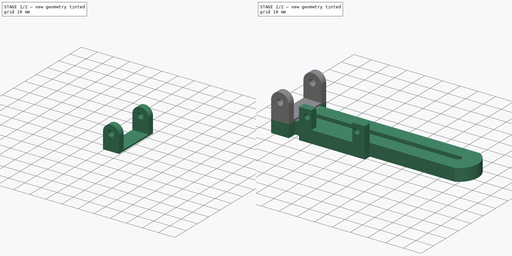
[diagram: build sequence overview — one tinted view per stage of 2, left to right]
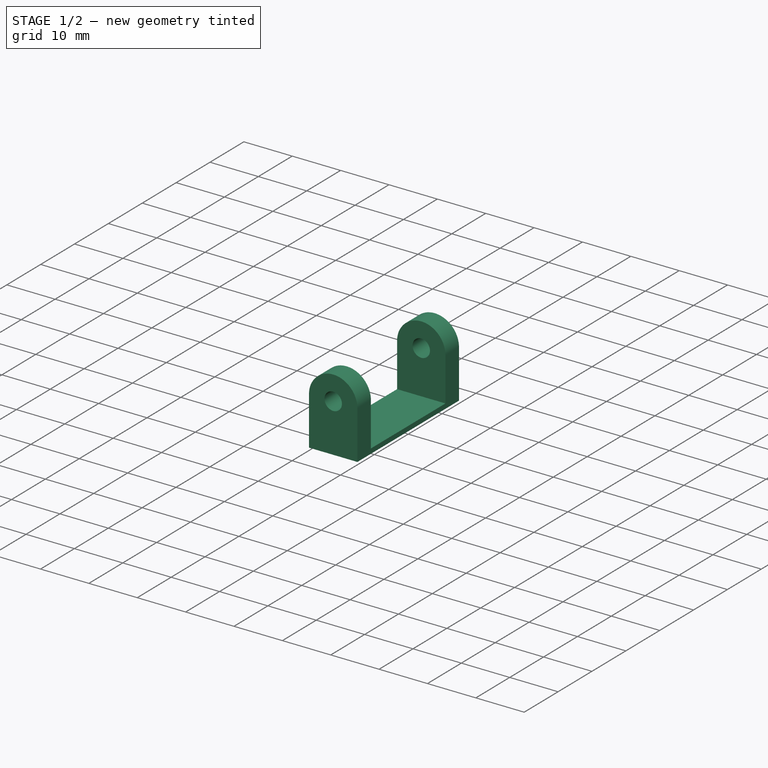
[diagram: stage 1 of 2 — iso view after this stage's code; geometry added in this stage tinted green]
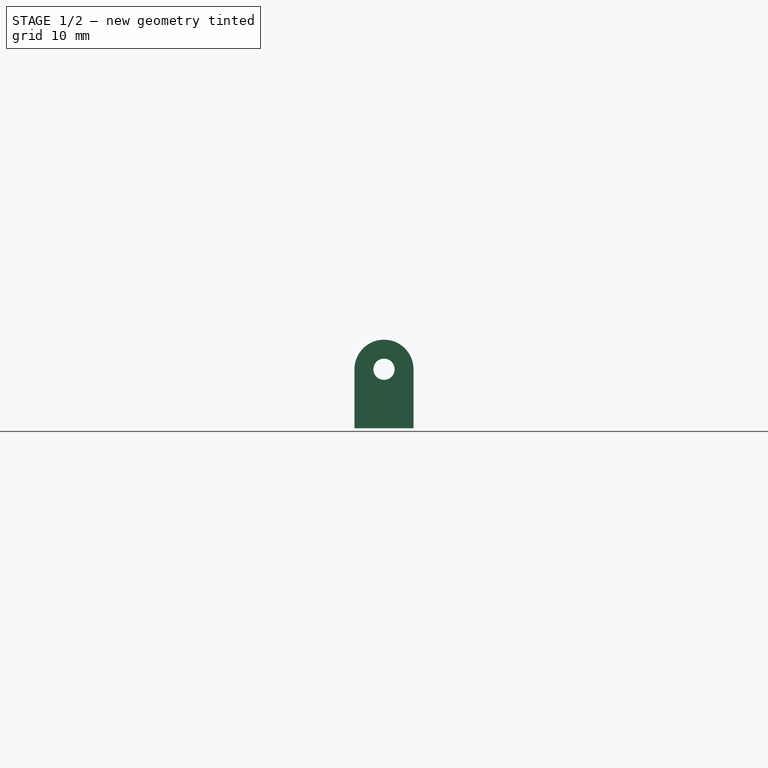
[diagram: stage 1 of 2 — front view after this stage's code; geometry added in this stage tinted green]
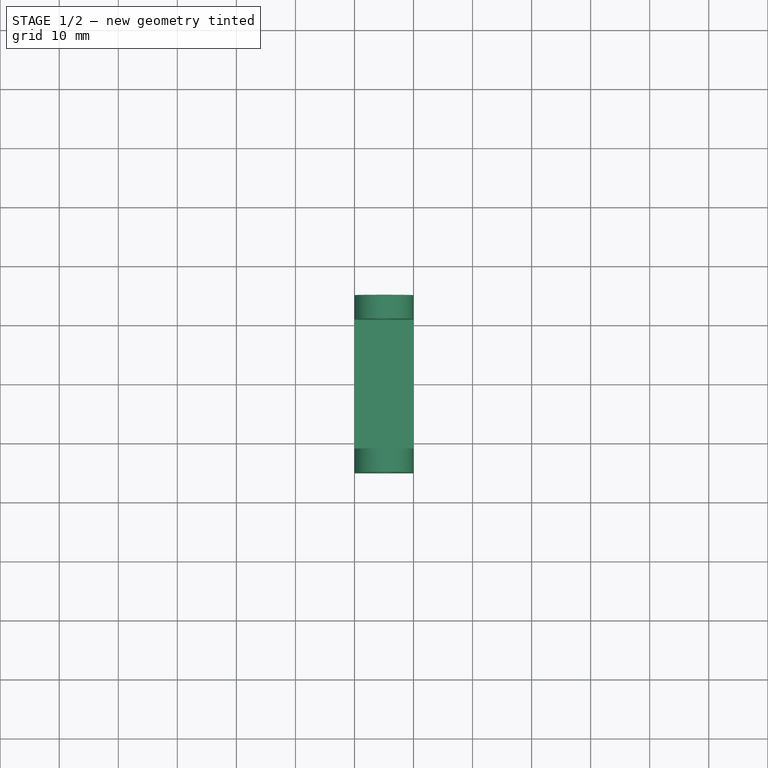
[diagram: stage 1 of 2 — top view after this stage's code; geometry added in this stage tinted green]
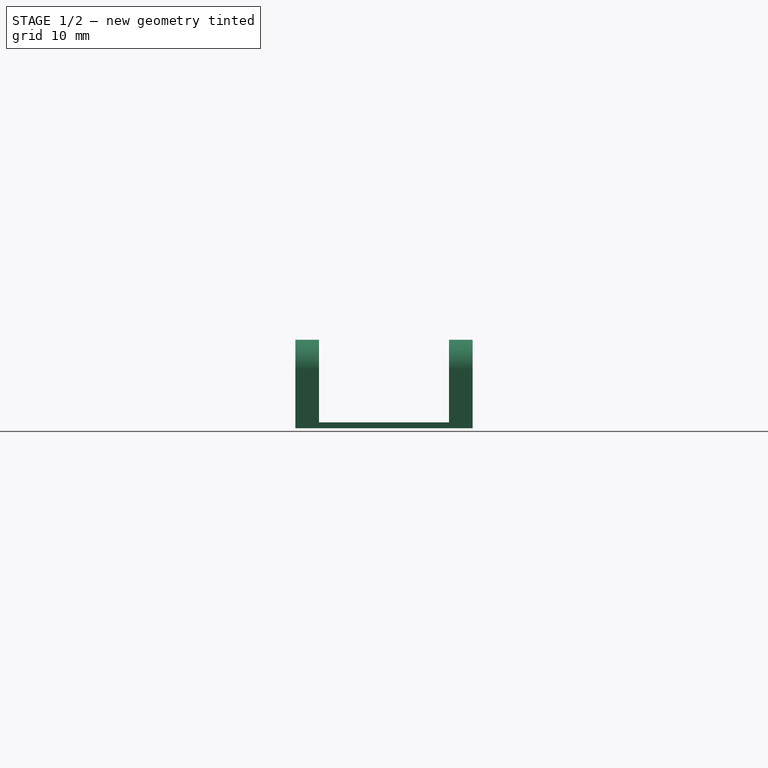
[diagram: stage 1 of 2 — right view after this stage's code; geometry added in this stage tinted green]
FCSTD DOCUMENT
Label: Arm2
objects: Sketcher::SketchObject×4, PartDesign::Pad×3, PartDesign::Pocket×1
note: 11 computed .brp shape members not serialized (recipe doc carries the construction recipe); baked Part::Feature solids carry a one-line shape summary decoded from their .brp

FEATURE [Sketcher::SketchObject] Sketch002
  Placement = pos=(0,0,0) rot=(-1,0,0;4.71239rad)
  sketch-geometry (6):
    g0: LineSegment StartX=0 StartY=7 StartZ=0 EndX=10 EndY=7 EndZ=0
    g1: LineSegment StartX=10 StartY=7 StartZ=0 EndX=10 EndY=17 EndZ=0
    g2: LineSegment [constr] StartX=10 StartY=17 StartZ=0 EndX=0 EndY=17 EndZ=0
    g3: LineSegment StartX=0 StartY=17 StartZ=0 EndX=0 EndY=7 EndZ=0
    g4: ArcOfCircle CenterX=5 CenterY=17 CenterZ=0 NormalX=0 NormalY=0 NormalZ=1 Radius=5 StartAngle=0 EndAngle=3.14159
    g5: Circle CenterX=5 CenterY=17 CenterZ=0 NormalX=0 NormalY=0 NormalZ=1 Radius=1.8
  constraints (17):
    c: Coincident(g0,g1)
    c: Coincident(g1,g2)
    c: Coincident(g2,g3)
    c: Coincident(g3,g0)
    c: Horizontal(g0)
    c: Horizontal(g2)
    c: Vertical(g1)
    c: Vertical(g3)
    c: PointOnObject(g4,g2)
    c: Coincident(g4,g2)
    c: Coincident(g4,g1)
    c: DistanceY(g3) = -10
    c: DistanceX(g0) = 10
    c: Coincident(g5,g4)
    c: Radius(g5) = 1.8
    c: DistanceX(g0) = 0
    c: DistanceY(g0) = 7
FEATURE [PartDesign::Pad] Pad002
  Length = 30
  MirroredExtent = false
  Placement = pos=(0,25,0) rot=(0,0,1;0rad)
  Sketch = -> Sketch002
FEATURE [Sketcher::SketchObject] Sketch003
  Placement = pos=(0,25,0) rot=(0.57735,-0.57735,-0.57735;2.0944rad)
  Support = -> Pad002 [Face3]
  sketch-geometry (4):
    g0: LineSegment StartX=4 StartY=22 StartZ=0 EndX=26 EndY=22 EndZ=0
    g1: LineSegment StartX=26 StartY=22 StartZ=0 EndX=26 EndY=8 EndZ=0
    g2: LineSegment StartX=26 StartY=8 StartZ=0 EndX=4 EndY=8 EndZ=0
    g3: LineSegment StartX=4 StartY=8 StartZ=0 EndX=4 EndY=22 EndZ=0
  constraints (12):
    c: Coincident(g0,g1)
    c: Coincident(g1,g2)
    c: Coincident(g2,g3)
    c: Coincident(g3,g0)
    c: Horizontal(g0)
    c: Horizontal(g2)
    c: Vertical(g1)
    c: Vertical(g3)
    c: DistanceX(g0) = 22
    c: DistanceY(g1) = -14
    c: DistanceX(g1) = 26
    c: DistanceY(g1) = 8
FEATURE [PartDesign::Pocket] Pocket
  Length = 10
  Sketch = -> Sketch003
  Type = 0
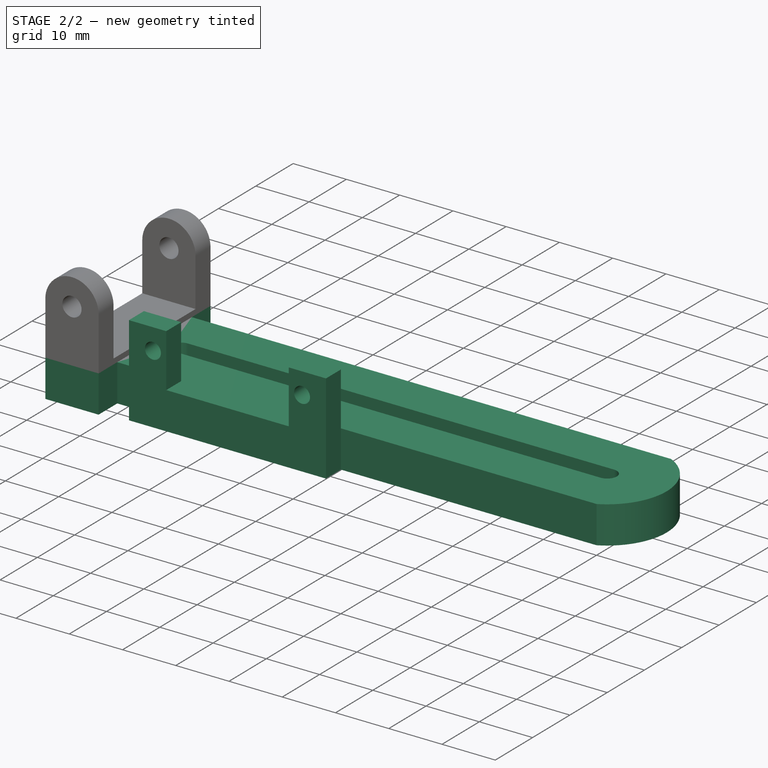
[diagram: stage 2 of 2 — iso view after this stage's code; geometry added in this stage tinted green]
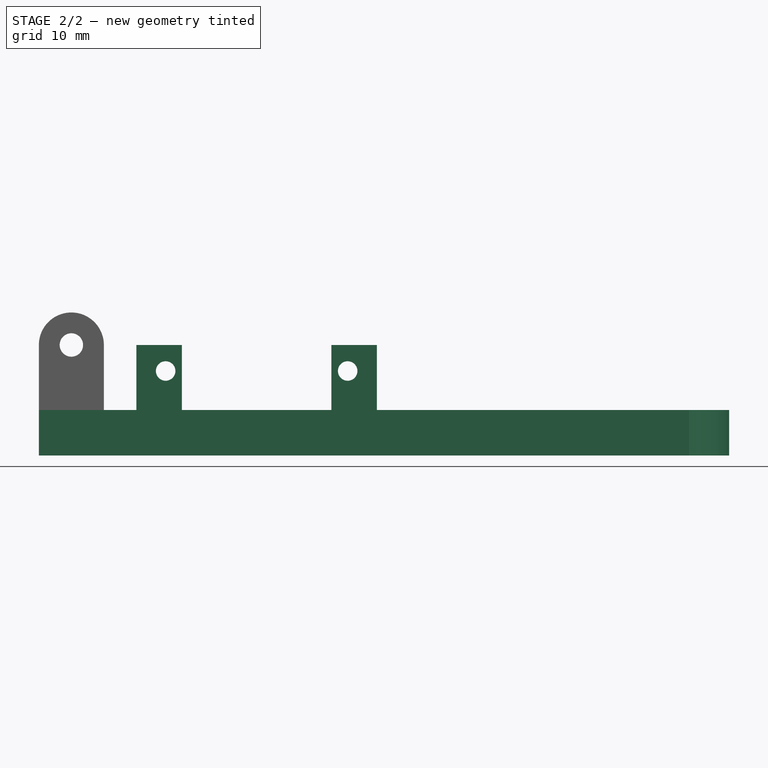
[diagram: stage 2 of 2 — front view after this stage's code; geometry added in this stage tinted green]
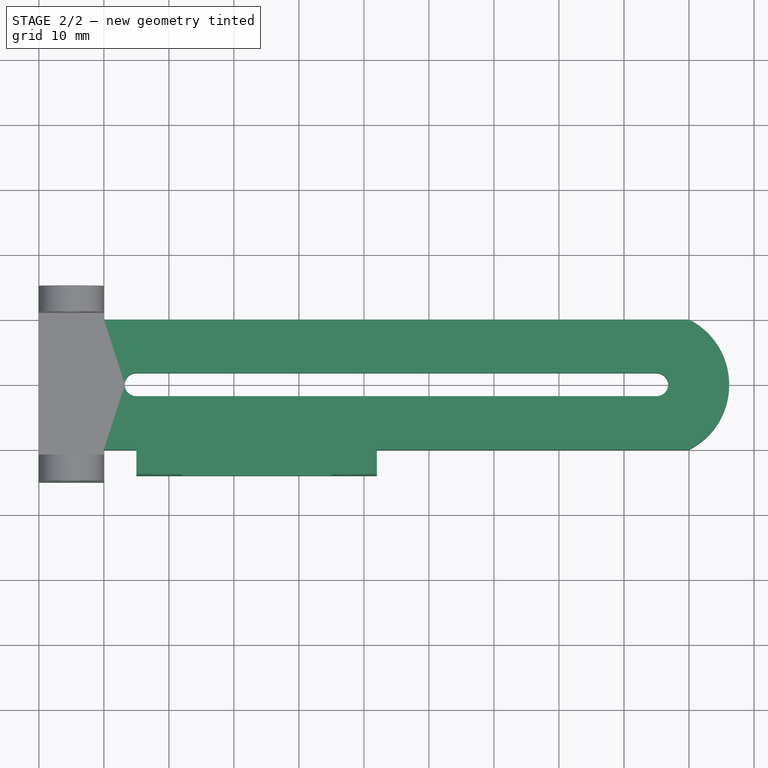
[diagram: stage 2 of 2 — top view after this stage's code; geometry added in this stage tinted green]
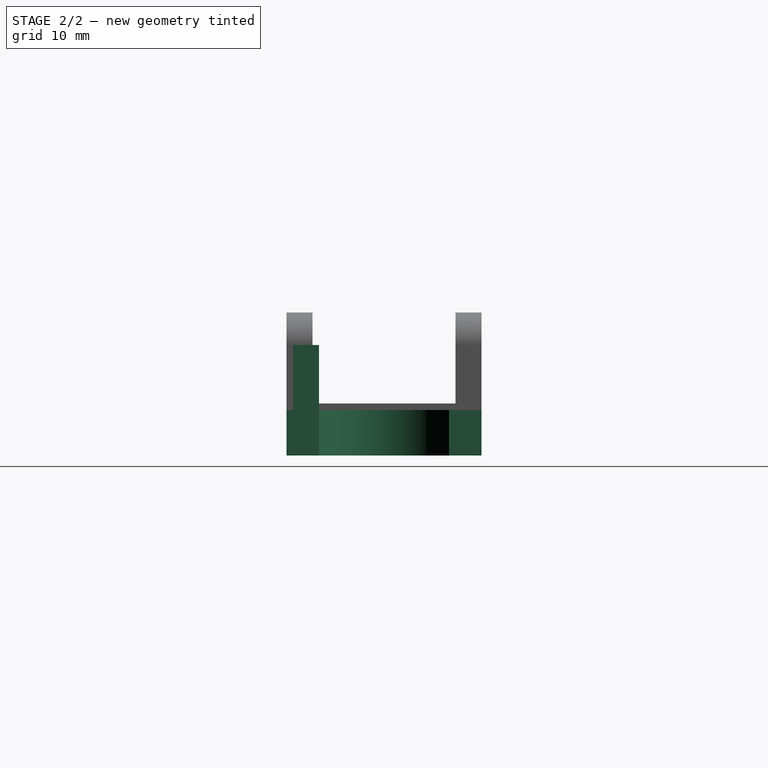
[diagram: stage 2 of 2 — right view after this stage's code; geometry added in this stage tinted green]
FEATURE [Sketcher::SketchObject] Sketch
  sketch-geometry (14):
    g0: LineSegment StartX=0 StartY=25 StartZ=0 EndX=10 EndY=25 EndZ=0
    g1: LineSegment StartX=10 StartY=-5 StartZ=0 EndX=0 EndY=-5 EndZ=0
    g2: LineSegment StartX=0 StartY=-5 StartZ=0 EndX=0 EndY=25 EndZ=0
    g3: LineSegment StartX=10 StartY=0 StartZ=0 EndX=100 EndY=0 EndZ=0
    g4: LineSegment StartX=100 StartY=20 StartZ=0 EndX=10 EndY=20 EndZ=0
    g5: LineSegment StartX=10 StartY=25 StartZ=0 EndX=10 EndY=20 EndZ=0
    g6: LineSegment StartX=10 StartY=0 StartZ=0 EndX=10 EndY=-5 EndZ=0
    g7: ArcOfCircle CenterX=15 CenterY=10 CenterZ=0 NormalX=0 NormalY=0 NormalZ=1 Radius=1.8 StartAngle=1.5708 EndAngle=4.71239
    g8: ArcOfCircle CenterX=95 CenterY=10 CenterZ=0 NormalX=0 NormalY=0 NormalZ=1 Radius=1.8 StartAngle=4.71239 EndAngle=7.85398
    g9: LineSegment StartX=15 StartY=11.8 StartZ=0 EndX=95 EndY=11.8 EndZ=0
    g10: LineSegment [constr] StartX=95 StartY=11.8 StartZ=0 EndX=95 EndY=8.2 EndZ=0
    g11: LineSegment StartX=95 StartY=8.2 StartZ=0 EndX=15 EndY=8.2 EndZ=0
    g12: LineSegment [constr] StartX=15 StartY=8.2 StartZ=0 EndX=15 EndY=11.8 EndZ=0
    g13: ArcOfCircle CenterX=95 CenterY=10 CenterZ=0 NormalX=0 NormalY=0 NormalZ=1 Radius=11.1803 StartAngle=5.17604 EndAngle=7.39033
  constraints (42):
    c: Coincident(g1,g2)
    c: Coincident(g2,g0)
    c: Horizontal(g0)
    c: Horizontal(g1)
    c: Vertical(g2)
    c: Horizontal(g3)
    c: Horizontal(g4)
    c: Coincident(g5,g0)
    c: Coincident(g5,g4)
    c: Vertical(g5)
    c: Coincident(g6,g3)
    c: Coincident(g6,g1)
    c: Vertical(g6)
    c: Equal(g5,g6)
    c: DistanceY(g6) = -5
    c: DistanceX(g1) = -10
    c: DistanceX(g3) = 90
    c: Equal(g1,g0)
    c: Coincident(g9,g10)
    c: Coincident(g10,g11)
    c: Coincident(g11,g12)
    c: Coincident(g12,g9)
    c: Horizontal(g9)
    c: Horizontal(g11)
    c: Vertical(g10)
    c: Vertical(g12)
    c: PointOnObject(g8,g10)
    c: Coincident(g8,g9)
    c: Coincident(g8,g10)
    c: Coincident(g7,g9)
    c: PointOnObject(g7,g12)
    c: Coincident(g7,g11)
    c: Radius(g8) = 1.8
    c: DistanceX(g1) = 0
    c: DistanceY(g1) = -5
    c: DistanceX(g7) = 15
    c: DistanceY(g7) = 10
    c: DistanceX(g11) = -80
    c: Coincident(g13,g8)
    c: Coincident(g13,g4)
    c: Coincident(g13,g3)
    c: DistanceY(g4,g3) = -20
FEATURE [PartDesign::Pad] Pad
  Length = 7
  MirroredExtent = false
  Sketch = -> Sketch
FEATURE [Sketcher::SketchObject] Sketch001
  Placement = pos=(0,0,0) rot=(1,0,0;1.5708rad)
  Support = -> Pad [Face10]
  sketch-geometry (11):
    g0: LineSegment StartX=15 StartY=0 StartZ=0 EndX=15 EndY=17 EndZ=0
    g1: LineSegment StartX=15 StartY=17 StartZ=0 EndX=22 EndY=17 EndZ=0
    g2: LineSegment StartX=22 StartY=17 StartZ=0 EndX=22 EndY=7 EndZ=0
    g3: LineSegment StartX=22 StartY=7 StartZ=0 EndX=45 EndY=7 EndZ=0
    g4: LineSegment StartX=45 StartY=7 StartZ=0 EndX=45 EndY=17 EndZ=0
    g5: LineSegment StartX=45 StartY=17 StartZ=0 EndX=52 EndY=17 EndZ=0
    g6: LineSegment StartX=52 StartY=17 StartZ=0 EndX=52 EndY=0 EndZ=0
    g7: LineSegment StartX=52 StartY=0 StartZ=0 EndX=15 EndY=0 EndZ=0
    g8: Circle CenterX=19.5 CenterY=13 CenterZ=0 NormalX=0 NormalY=0 NormalZ=1 Radius=1.5
    g9: Circle CenterX=47.5 CenterY=13 CenterZ=0 NormalX=0 NormalY=0 NormalZ=1 Radius=1.5
    g10: LineSegment [constr] StartX=47.5 StartY=13 StartZ=0 EndX=19.5 EndY=13 EndZ=0
  constraints (32):
    c: Vertical(g0)
    c: Coincident(g0,g1)
    c: Horizontal(g1)
    c: Coincident(g1,g2)
    c: Vertical(g2)
    c: Coincident(g2,g3)
    c: Horizontal(g3)
    c: Coincident(g3,g4)
    c: Vertical(g4)
    c: Coincident(g4,g5)
    c: Horizontal(g5)
    c: Coincident(g5,g6)
    c: Vertical(g6)
    c: Coincident(g6,g7)
    c: Coincident(g7,g0)
    c: Horizontal(g7)
    c: Equal(g2,g4)
    c: Equal(g1,g5)
    c: DistanceX(g1,g4) = 23
    c: DistanceX(g1) = 7
    c: DistanceY(g2) = -10
    c: DistanceX(g0) = 15
    c: DistanceY(g0) = 0
    c: DistanceY(g2,g0) = -7
    c: Coincident(g10,g9)
    c: Coincident(g10,g8)
    c: Horizontal(g10)
    c: Equal(g8,g9)
    c: Radius(g8) = 1.5
    c: DistanceX(g10) = -28
    c: DistanceY(g3,g9) = 6
    c: DistanceX(g9,g3) = -2.5
FEATURE [PartDesign::Pad] Pad001
  Length = 4
  MirroredExtent = false
  Sketch = -> Sketch001
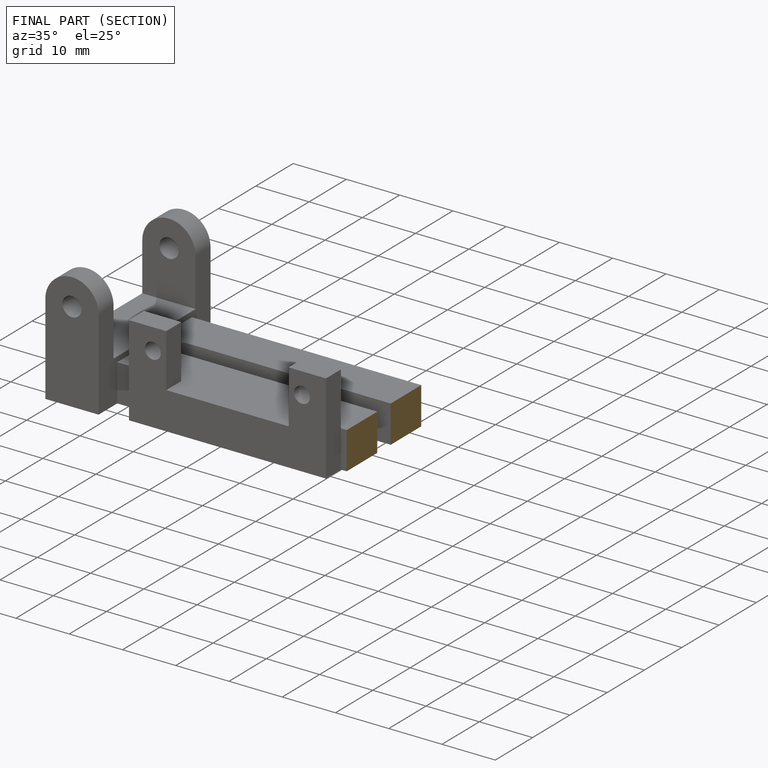
[diagram: finished part — half-section view (interior)]
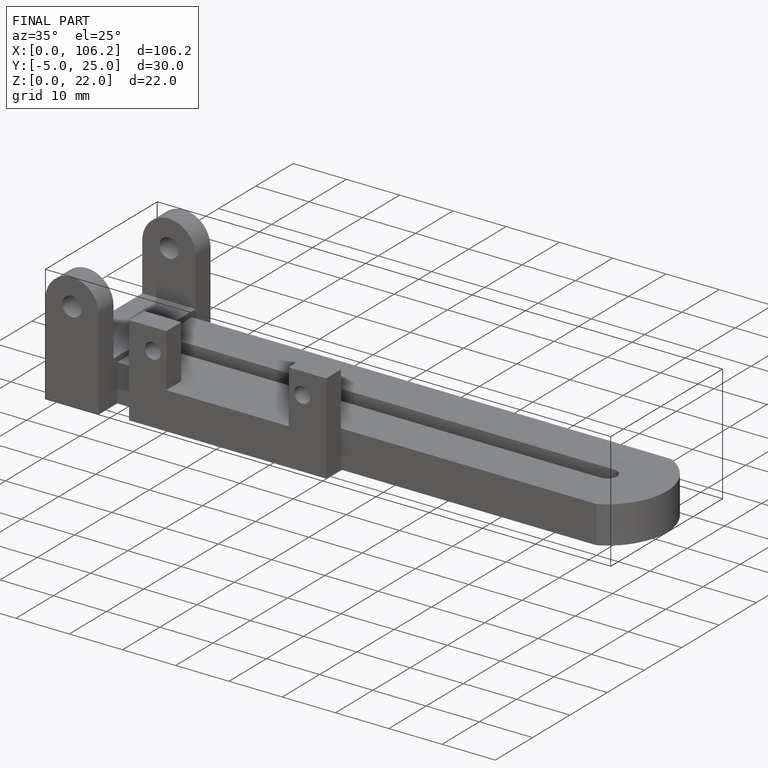
[diagram: finished part — iso view with bounding-box wireframe]
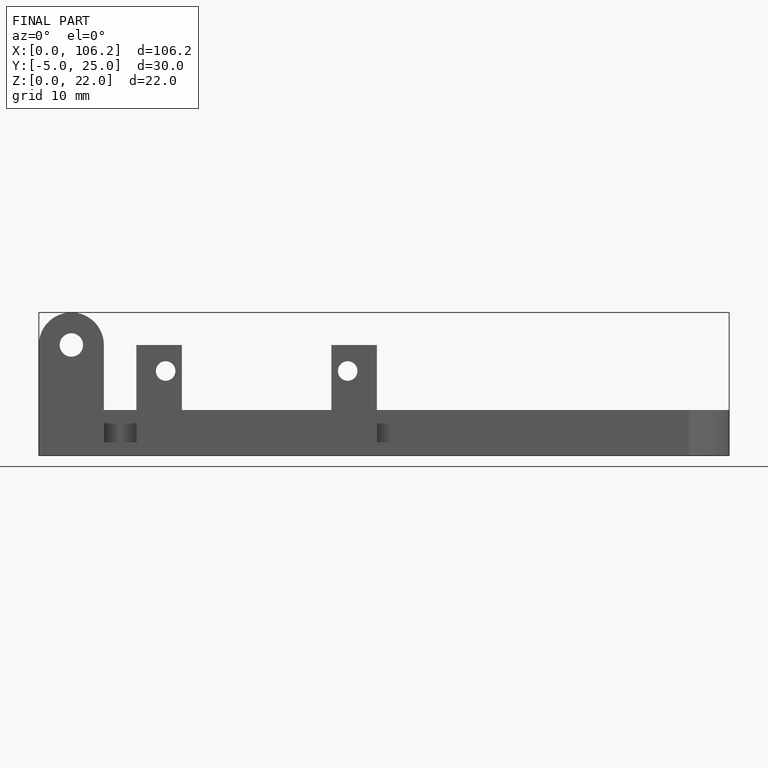
[diagram: finished part — front view with bounding-box wireframe]
